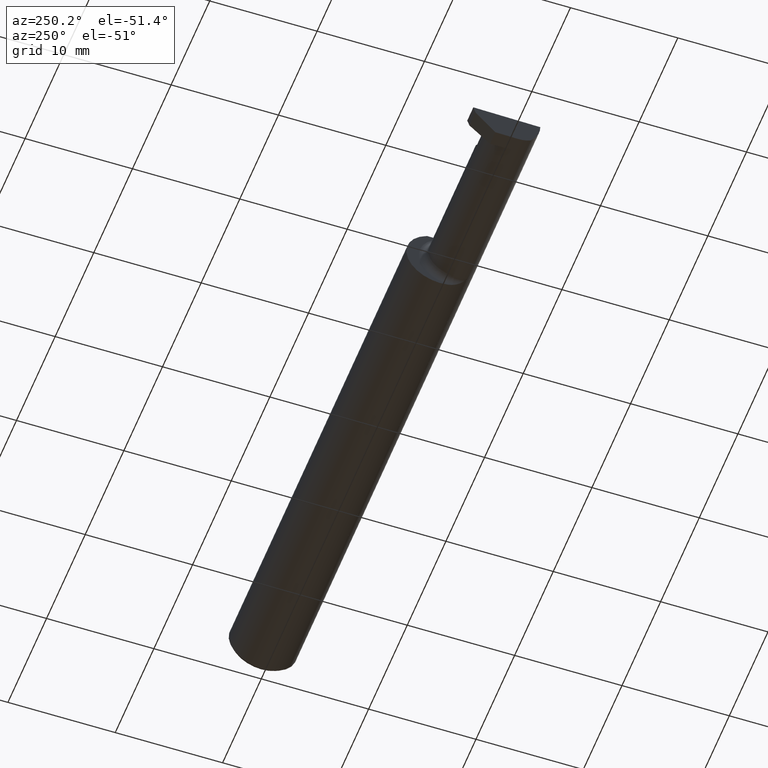
[diagram: clean part render]
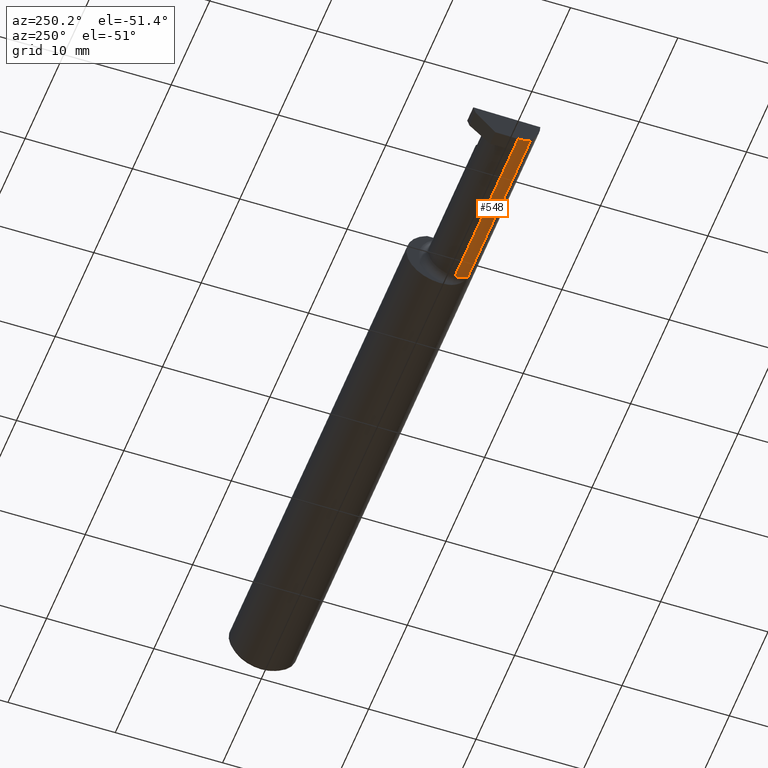
[diagram: same view with one face highlighted and labeled with its STEP entity id]
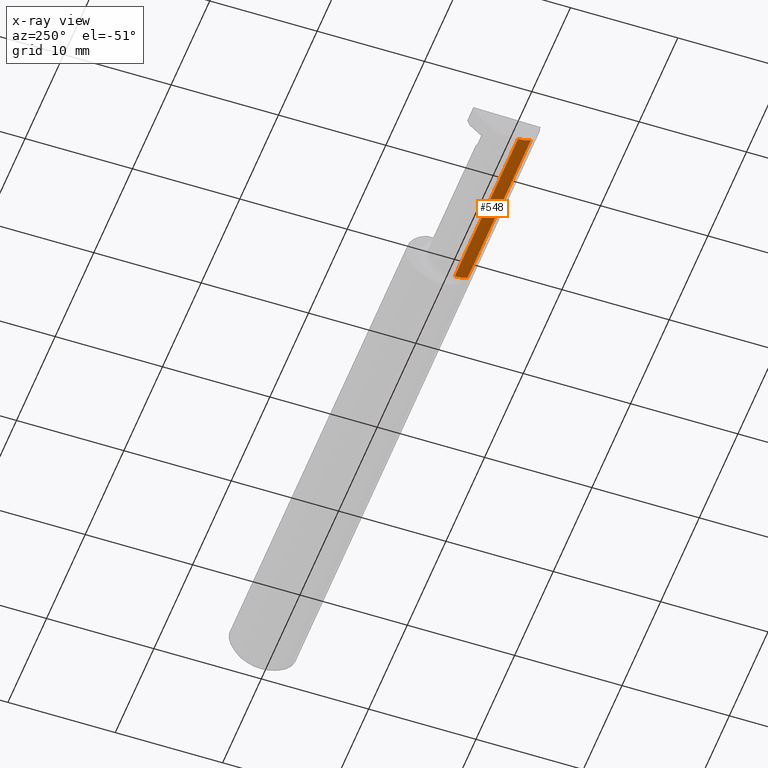
[diagram: x-ray of the same camera — body ghosted, the highlighted face saturated]
A machine part, auxiliary view. The second image highlights one B-rep face of the part: STEP entity #548.
The next image is the same camera in x-ray: the body ghosted, the highlighted face saturated — about 0% of this face is hidden behind the body in this view.
In plain terms, the highlighted cylindrical surface (edge-blend (fillet) strip) has radius 2.4892 mm, axis along (1, -0, -0).
Its self-contained STEP definition (entity closure, byte-faithful):
#37 = FACE_OUTER_BOUND ( 'NONE', #665, .T. ) ;
#51 = CYLINDRICAL_SURFACE ( 'NONE', #352, 0.09800000000000000377 ) ;
#156 = VECTOR ( 'NONE', #217, 39.37007874015748143 ) ;
#173 = ORIENTED_EDGE ( 'NONE', *, *, #435, .F. ) ;
#192 = VERTEX_POINT ( 'NONE', #598 ) ;
#217 = DIRECTION ( 'NONE',  ( 1.000000000000000000, -0.000000000000000000, -0.000000000000000000 ) ) ;
#229 = ORIENTED_EDGE ( 'NONE', *, *, #504, .T. ) ;
#263 = VECTOR ( 'NONE', #461, 39.37007874015748143 ) ;
#273 = CARTESIAN_POINT ( 'NONE',  ( -2.494536841675280225, -0.04385000000000003478, -0.09799999999999998990 ) ) ;
#274 = CARTESIAN_POINT ( 'NONE',  ( -2.494082244196984099, -0.07583965973232817404, -0.09404455760388209795 ) ) ;
#277 = AXIS2_PLACEMENT_3D ( 'NONE', #285, #755, #713 ) ;
#281 = LINE ( 'NONE', #751, #156 ) ;
#285 = CARTESIAN_POINT ( 'NONE',  ( -1.849999999999999867, -0.04385000000000001397, 0.000000000000000000 ) ) ;
#326 = VERTEX_POINT ( 'NONE', #565 ) ;
#352 = AXIS2_PLACEMENT_3D ( 'NONE', #674, #386, #462 ) ;
#379 =( BOUNDED_CURVE ( )  B_SPLINE_CURVE ( 3, ( #447, #274, #553, #611 ),
 .UNSPECIFIED., .F., .F. ) 
 B_SPLINE_CURVE_WITH_KNOTS ( ( 4, 4 ),
 ( 0.09562308769838283318, 0.5877155292608426951 ),
 .UNSPECIFIED. ) 
 CURVE ( )  GEOMETRIC_REPRESENTATION_ITEM ( )  RATIONAL_B_SPLINE_CURVE ( ( 1.000000000000000000, 0.9799220177372778284, 0.9799220177372778284, 1.000000000000000000 ) ) 
 REPRESENTATION_ITEM ( '' )  );
#386 = DIRECTION ( 'NONE',  ( 1.000000000000000000, -0.000000000000000000, -0.000000000000000000 ) ) ;
#395 = CARTESIAN_POINT ( 'NONE',  ( -1.849999999999999867, -0.09015216647662478711, -0.08637192471845771269 ) ) ;
#435 = EDGE_CURVE ( 'NONE', #613, #629, #697, .T. ) ;
#447 = CARTESIAN_POINT ( 'NONE',  ( -2.494033449660867152, -0.09015216647662482874, -0.08637192471845768493 ) ) ;
#454 = CARTESIAN_POINT ( 'NONE',  ( -2.143499999999999961, -0.09015216647662482874, -0.08637192471845768493 ) ) ;
#459 = CARTESIAN_POINT ( 'NONE',  ( -2.500000000000000000, -0.04385000000000002091, -0.09799999999999998990 ) ) ;
#461 = DIRECTION ( 'NONE',  ( 1.000000000000000000, -0.000000000000000000, -0.000000000000000000 ) ) ;
#462 = DIRECTION ( 'NONE',  ( 0.000000000000000000, 0.000000000000000000, 1.000000000000000000 ) ) ;
#500 = VECTOR ( 'NONE', #694, 39.37007874015748143 ) ;
#504 = EDGE_CURVE ( 'NONE', #192, #326, #281, .T. ) ;
#508 = ORIENTED_EDGE ( 'NONE', *, *, #774, .T. ) ;
#533 = EDGE_CURVE ( 'NONE', #326, #629, #787, .T. ) ;
#548 = ADVANCED_FACE ( 'NONE', ( #37 ), #51, .T. ) ;
#553 = CARTESIAN_POINT ( 'NONE',  ( -2.494253479596434175, -0.06008937020638527304, -0.09800000000000000377 ) ) ;
#565 = CARTESIAN_POINT ( 'NONE',  ( -1.849999999999999867, -0.04385000000000003478, -0.09800000000000000377 ) ) ;
#582 = CARTESIAN_POINT ( 'NONE',  ( -2.494033449660867152, -0.09015216647662482874, -0.08637192471845768493 ) ) ;
#598 = CARTESIAN_POINT ( 'NONE',  ( -2.441853376795600994, -0.04385000000000004172, -0.09799999999999998990 ) ) ;
#602 = ORIENTED_EDGE ( 'NONE', *, *, #533, .T. ) ;
#611 = CARTESIAN_POINT ( 'NONE',  ( -2.494536841675280225, -0.04385000000000003478, -0.09799999999999998990 ) ) ;
#613 = VERTEX_POINT ( 'NONE', #582 ) ;
#623 = VERTEX_POINT ( 'NONE', #273 ) ;
#629 = VERTEX_POINT ( 'NONE', #395 ) ;
#657 = LINE ( 'NONE', #459, #500 ) ;
#665 = EDGE_LOOP ( 'NONE', ( #508, #229, #602, #173, #714 ) ) ;
#674 = CARTESIAN_POINT ( 'NONE',  ( -1.824999999999999956, -0.04385000000000001397, 0.000000000000000000 ) ) ;
#676 = EDGE_CURVE ( 'NONE', #613, #623, #379, .T. ) ;
#694 = DIRECTION ( 'NONE',  ( 1.000000000000000000, -0.000000000000000000, -0.000000000000000000 ) ) ;
#697 = LINE ( 'NONE', #454, #263 ) ;
#713 = DIRECTION ( 'NONE',  ( 0.000000000000000000, 0.000000000000000000, 1.000000000000000000 ) ) ;
#714 = ORIENTED_EDGE ( 'NONE', *, *, #676, .T. ) ;
#751 = CARTESIAN_POINT ( 'NONE',  ( -1.824999999999999956, -0.04385000000000002091, -0.09800000000000000377 ) ) ;
#755 = DIRECTION ( 'NONE',  ( -1.000000000000000000, 0.000000000000000000, 0.000000000000000000 ) ) ;
#774 = EDGE_CURVE ( 'NONE', #623, #192, #657, .T. ) ;
#787 = CIRCLE ( 'NONE', #277, 0.09800000000000000377 ) ;